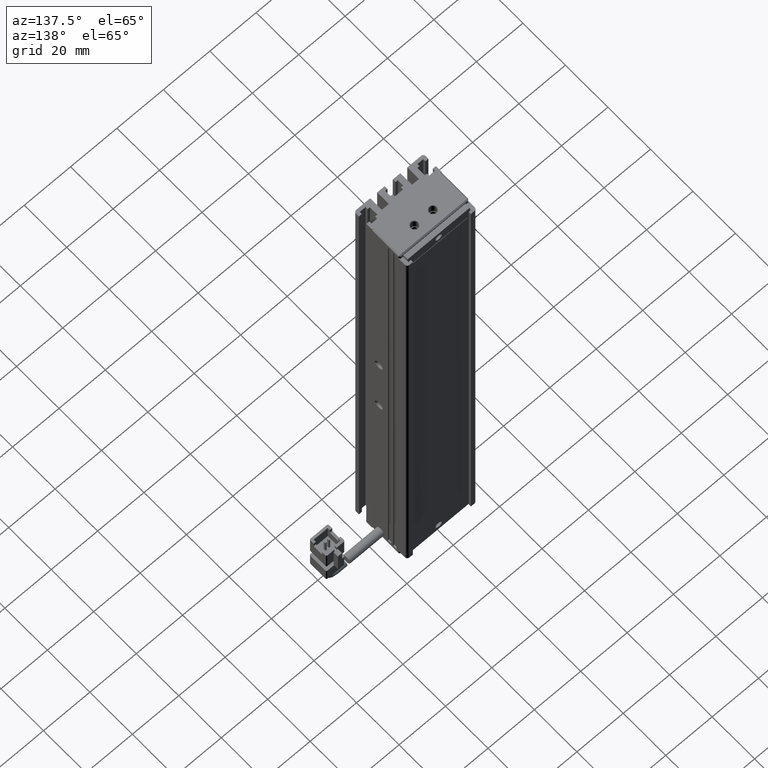
[diagram: clean part render]
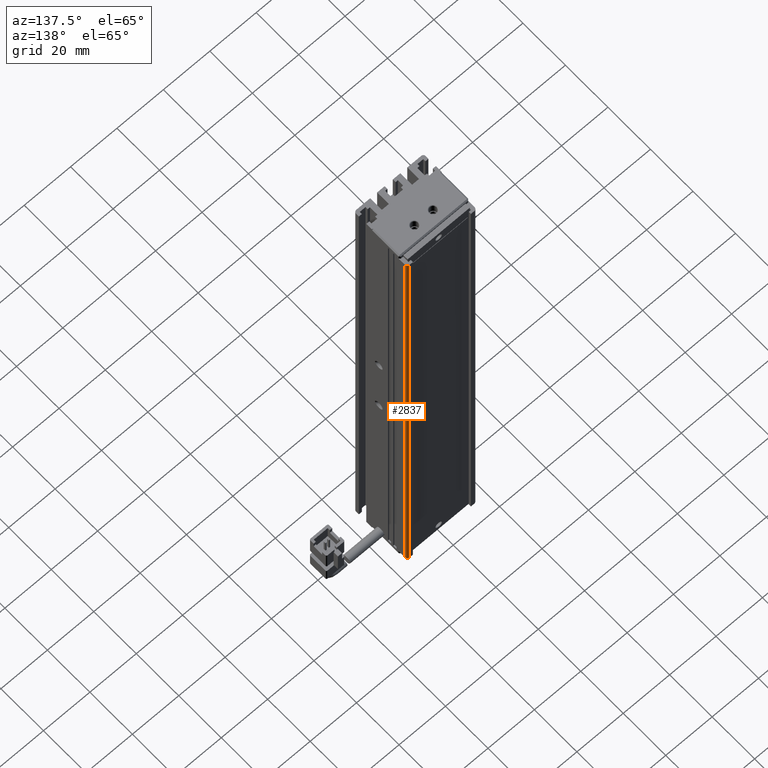
[diagram: same view with one face highlighted and labeled with its STEP entity id]
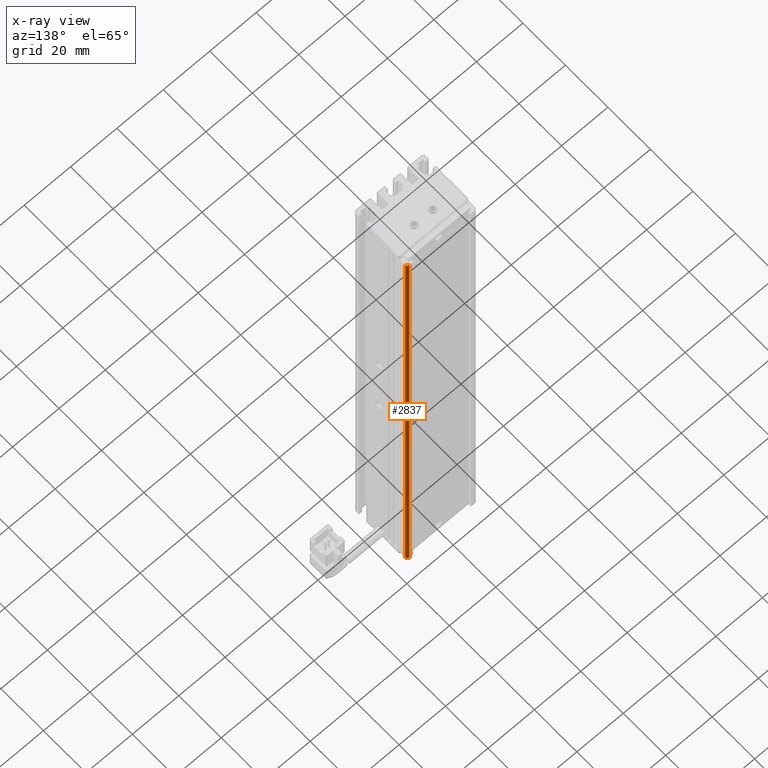
[diagram: x-ray of the same camera — body ghosted, the highlighted face saturated]
A machine part, auxiliary view. The second image highlights one B-rep face of the part: STEP entity #2837.
The next image is the same camera in x-ray: the body ghosted, the highlighted face saturated — about 0% of this face is hidden behind the body in this view.
In plain terms, the highlighted cylindrical surface (edge-blend (fillet) strip) has radius 1 mm, axis along (-0, -0, -1).
Its self-contained STEP definition (entity closure, byte-faithful):
#2113 = CARTESIAN_POINT ( 'NONE',  ( 55.92537974683542500, 34.69594479660387500, -225.0000000000000000 ) ) ;
#2236 = DIRECTION ( 'NONE',  ( -1.000000000000000000, 0.0000000000000000000, 0.0000000000000000000 ) ) ;
#2837 = ADVANCED_FACE ( 'NONE', ( #48009 ), #34361, .T. ) ;
#3068 = DIRECTION ( 'NONE',  ( 0.0000000000000000000, 0.0000000000000000000, 1.000000000000000000 ) ) ;
#3389 = EDGE_LOOP ( 'NONE', ( #44473, #17030, #11568, #7571 ) ) ;
#4967 = DIRECTION ( 'NONE',  ( -0.0000000000000000000, -0.0000000000000000000, -1.000000000000000000 ) ) ;
#5754 = CARTESIAN_POINT ( 'NONE',  ( 54.92537974683542500, 34.69594479660387500, -3.000000000000002700 ) ) ;
#6086 = EDGE_CURVE ( 'NONE', #30583, #18765, #14980, .T. ) ;
#7571 = ORIENTED_EDGE ( 'NONE', *, *, #45936, .T. ) ;
#10623 = CARTESIAN_POINT ( 'NONE',  ( 55.92537974683542500, 34.69594479660387500, -3.000000000000002700 ) ) ;
#11568 = ORIENTED_EDGE ( 'NONE', *, *, #6086, .T. ) ;
#12360 = CARTESIAN_POINT ( 'NONE',  ( 55.92537974683542500, 34.69594479660387500, -5.000000000000004400 ) ) ;
#14695 = CARTESIAN_POINT ( 'NONE',  ( 54.92537974683541800, 35.69594479660387500, -3.000000000000002700 ) ) ;
#14980 = LINE ( 'NONE', #14695, #45319 ) ;
#17030 = ORIENTED_EDGE ( 'NONE', *, *, #29963, .T. ) ;
#18765 = VERTEX_POINT ( 'NONE', #40301 ) ;
#19561 = VECTOR ( 'NONE', #33257, 1000.000000000000000 ) ;
#20768 = LINE ( 'NONE', #10623, #19561 ) ;
#21421 = CARTESIAN_POINT ( 'NONE',  ( 54.92537974683542500, 35.69594479660387500, -225.0000000000000000 ) ) ;
#24691 = EDGE_CURVE ( 'NONE', #44484, #41520, #20768, .T. ) ;
#25151 = DIRECTION ( 'NONE',  ( 0.0000000000000000000, 0.0000000000000000000, 1.000000000000000000 ) ) ;
#27853 = CARTESIAN_POINT ( 'NONE',  ( 54.92537974683542500, 34.69594479660387500, -5.000000000000004400 ) ) ;
#29963 = EDGE_CURVE ( 'NONE', #41520, #30583, #34050, .T. ) ;
#30246 = AXIS2_PLACEMENT_3D ( 'NONE', #47883, #25151, #2236 ) ;
#30583 = VERTEX_POINT ( 'NONE', #21421 ) ;
#31674 = DIRECTION ( 'NONE',  ( -1.000000000000000000, 0.0000000000000000000, 0.0000000000000000000 ) ) ;
#33257 = DIRECTION ( 'NONE',  ( -0.0000000000000000000, -0.0000000000000000000, -1.000000000000000000 ) ) ;
#34050 = CIRCLE ( 'NONE', #30246, 1.000000000000000900 ) ;
#34361 = CYLINDRICAL_SURFACE ( 'NONE', #44741, 1.000000000000000900 ) ;
#36172 = AXIS2_PLACEMENT_3D ( 'NONE', #27853, #4967, #31674 ) ;
#38446 = DIRECTION ( 'NONE',  ( -1.000000000000000000, 0.0000000000000000000, 0.0000000000000000000 ) ) ;
#39386 = DIRECTION ( 'NONE',  ( -0.0000000000000000000, -0.0000000000000000000, -1.000000000000000000 ) ) ;
#40301 = CARTESIAN_POINT ( 'NONE',  ( 54.92537974683542500, 35.69594479660387500, -5.000000000000004400 ) ) ;
#41520 = VERTEX_POINT ( 'NONE', #2113 ) ;
#41831 = CIRCLE ( 'NONE', #36172, 1.000000000000000900 ) ;
#44473 = ORIENTED_EDGE ( 'NONE', *, *, #24691, .T. ) ;
#44484 = VERTEX_POINT ( 'NONE', #12360 ) ;
#44741 = AXIS2_PLACEMENT_3D ( 'NONE', #5754, #39386, #38446 ) ;
#45319 = VECTOR ( 'NONE', #3068, 1000.000000000000000 ) ;
#45936 = EDGE_CURVE ( 'NONE', #18765, #44484, #41831, .T. ) ;
#47883 = CARTESIAN_POINT ( 'NONE',  ( 54.92537974683542500, 34.69594479660387500, -225.0000000000000000 ) ) ;
#48009 = FACE_OUTER_BOUND ( 'NONE', #3389, .T. ) ;